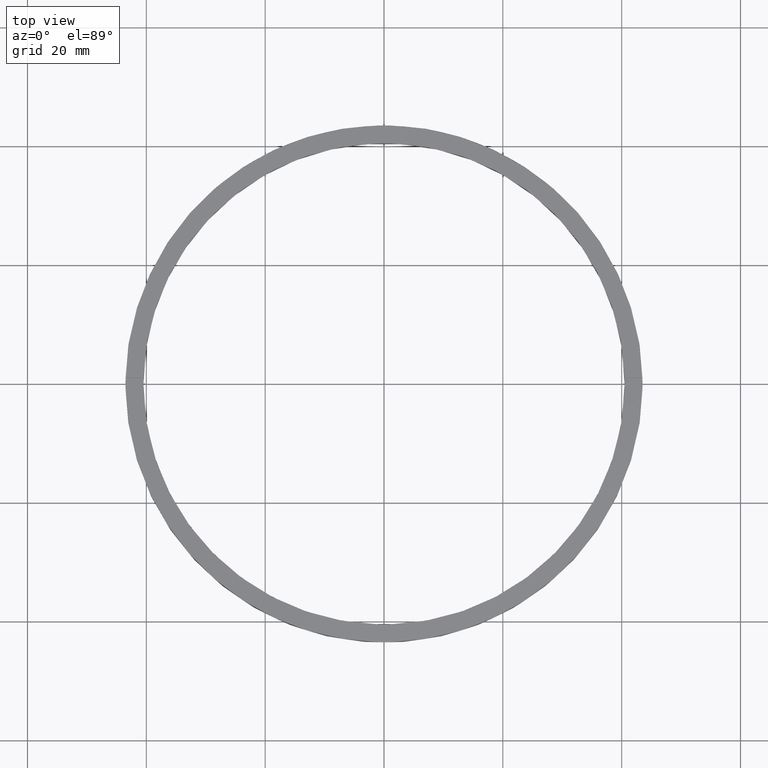
[diagram: clean part render]
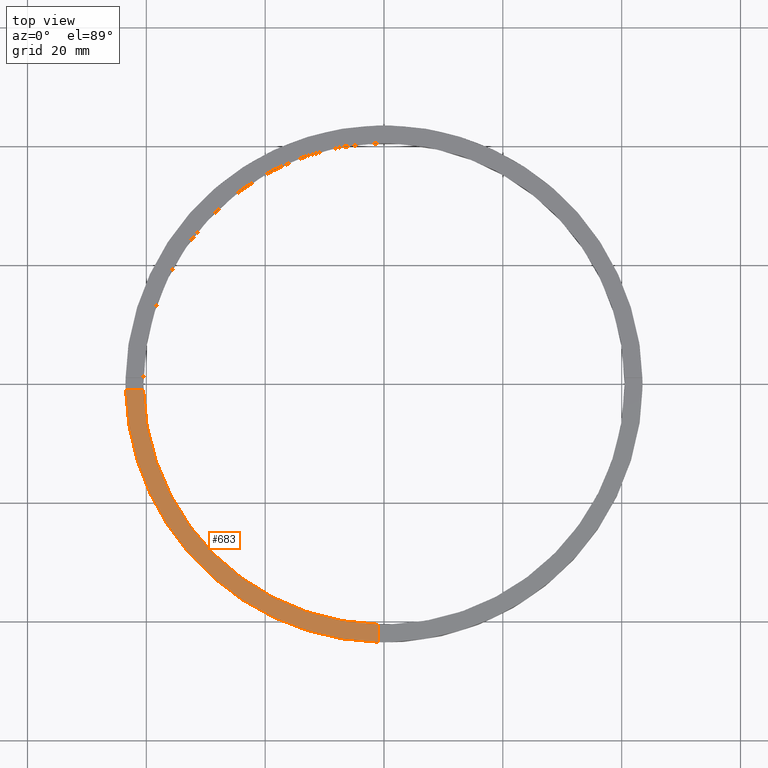
[diagram: same view with one face highlighted and labeled with its STEP entity id]
A machine part, top view. The second image highlights one B-rep face of the part: STEP entity #683.
In plain terms, the highlighted planar face has unit normal (0, 0, 1).
Its self-contained STEP definition (entity closure, byte-faithful):
#11 = EDGE_LOOP ( 'NONE', ( #730, #518, #684, #202 ) ) ;
#32 = CIRCLE ( 'NONE', #233, 40.50000000000000000 ) ;
#54 = VERTEX_POINT ( 'NONE', #109 ) ;
#61 = DIRECTION ( 'NONE',  ( 1.000000000000000000, 1.951563910473907735E-16, -0.000000000000000000 ) ) ;
#80 = CARTESIAN_POINT ( 'NONE',  ( 0.000000000000000000, 0.000000000000000000, 4.000000000000000000 ) ) ;
#109 = CARTESIAN_POINT ( 'NONE',  ( -1.000000000000158762, -40.48765243873741326, 4.000000000000000000 ) ) ;
#126 = EDGE_CURVE ( 'NONE', #428, #54, #32, .T. ) ;
#140 = CARTESIAN_POINT ( 'NONE',  ( 0.000000000000000000, 0.000000000000000000, 4.000000000000000000 ) ) ;
#166 = DIRECTION ( 'NONE',  ( 1.000000000000000000, 0.000000000000000000, -0.000000000000000000 ) ) ;
#201 = VECTOR ( 'NONE', #335, 1000.000000000000000 ) ;
#202 = ORIENTED_EDGE ( 'NONE', *, *, #436, .T. ) ;
#209 = DIRECTION ( 'NONE',  ( 1.000000000000000000, 0.000000000000000000, 0.000000000000000000 ) ) ;
#217 = CIRCLE ( 'NONE', #551, 43.50000000000000000 ) ;
#233 = AXIS2_PLACEMENT_3D ( 'NONE', #140, #692, #209 ) ;
#316 = CARTESIAN_POINT ( 'NONE',  ( -33.50000000000018474, -1.000000000000027534, 4.000000000000000000 ) ) ;
#327 = VERTEX_POINT ( 'NONE', #484 ) ;
#335 = DIRECTION ( 'NONE',  ( 1.301042606982605074E-16, -1.000000000000000000, 0.000000000000000000 ) ) ;
#359 = PLANE ( 'NONE',  #571 ) ;
#369 = DIRECTION ( 'NONE',  ( 0.000000000000000000, 0.000000000000000000, 1.000000000000000000 ) ) ;
#407 = CARTESIAN_POINT ( 'NONE',  ( -40.48765243873741326, -1.000000000000028866, 4.000000000000000000 ) ) ;
#415 = EDGE_CURVE ( 'NONE', #327, #428, #745, .T. ) ;
#428 = VERTEX_POINT ( 'NONE', #407 ) ;
#436 = EDGE_CURVE ( 'NONE', #327, #523, #217, .T. ) ;
#472 = DIRECTION ( 'NONE',  ( 0.000000000000000000, 0.000000000000000000, 1.000000000000000000 ) ) ;
#484 = CARTESIAN_POINT ( 'NONE',  ( -43.48850422812906658, -1.000000000000029532, 4.000000000000000000 ) ) ;
#487 = EDGE_CURVE ( 'NONE', #54, #523, #724, .T. ) ;
#518 = ORIENTED_EDGE ( 'NONE', *, *, #126, .F. ) ;
#519 = CARTESIAN_POINT ( 'NONE',  ( 0.000000000000000000, 0.000000000000000000, 4.000000000000000000 ) ) ;
#523 = VERTEX_POINT ( 'NONE', #758 ) ;
#551 = AXIS2_PLACEMENT_3D ( 'NONE', #80, #472, #772 ) ;
#571 = AXIS2_PLACEMENT_3D ( 'NONE', #519, #369, #166 ) ;
#674 = CARTESIAN_POINT ( 'NONE',  ( -1.000000000000159650, -33.50000000000017764, 4.000000000000000000 ) ) ;
#683 = ADVANCED_FACE ( 'NONE', ( #728 ), #359, .T. ) ;
#684 = ORIENTED_EDGE ( 'NONE', *, *, #415, .F. ) ;
#692 = DIRECTION ( 'NONE',  ( 0.000000000000000000, 0.000000000000000000, 1.000000000000000000 ) ) ;
#724 = LINE ( 'NONE', #674, #201 ) ;
#728 = FACE_OUTER_BOUND ( 'NONE', #11, .T. ) ;
#730 = ORIENTED_EDGE ( 'NONE', *, *, #487, .F. ) ;
#736 = VECTOR ( 'NONE', #61, 1000.000000000000000 ) ;
#745 = LINE ( 'NONE', #316, #736 ) ;
#758 = CARTESIAN_POINT ( 'NONE',  ( -1.000000000000158318, -43.48850422812905947, 4.000000000000000000 ) ) ;
#772 = DIRECTION ( 'NONE',  ( 1.000000000000000000, 0.000000000000000000, 0.000000000000000000 ) ) ;